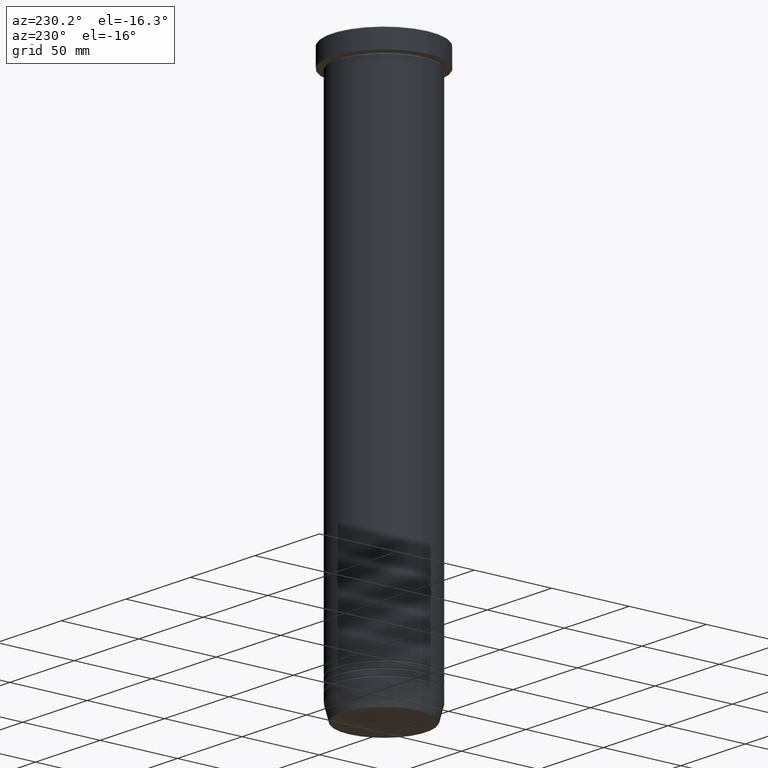
[diagram: clean part render]
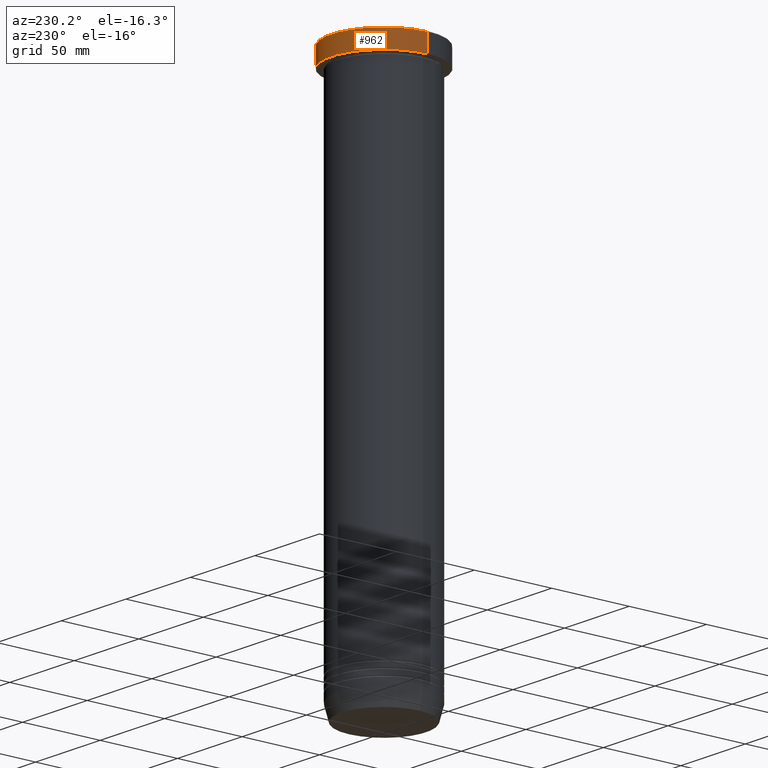
[diagram: same view with one face highlighted and labeled with its STEP entity id]
A machine part, auxiliary view. The second image highlights one B-rep face of the part: STEP entity #962.
In plain terms, the highlighted cylindrical surface (partial cylindrical patch) has radius 34 mm, axis along (-0, -0, 1).
Its self-contained STEP definition (entity closure, byte-faithful):
#3 = FACE_OUTER_BOUND ( 'NONE', #152, .T. ) ;
#53 = DIRECTION ( 'NONE',  ( -0.000000000000000000, -0.000000000000000000, 1.000000000000000000 ) ) ;
#58 = CARTESIAN_POINT ( 'NONE',  ( -34.00000000000000000, 4.163799117101000559E-15, 0.000000000000000000 ) ) ;
#69 = CARTESIAN_POINT ( 'NONE',  ( 34.00000000000000000, 0.000000000000000000, -11.99999999999999645 ) ) ;
#152 = EDGE_LOOP ( 'NONE', ( #552, #539, #535, #354 ) ) ;
#158 = AXIS2_PLACEMENT_3D ( 'NONE', #278, #434, #665 ) ;
#165 = CYLINDRICAL_SURFACE ( 'NONE', #530, 34.00000000000000000 ) ;
#167 = CIRCLE ( 'NONE', #755, 34.00000000000000000 ) ;
#171 = DIRECTION ( 'NONE',  ( -0.000000000000000000, -0.000000000000000000, 1.000000000000000000 ) ) ;
#208 = VERTEX_POINT ( 'NONE', #787 ) ;
#213 = VERTEX_POINT ( 'NONE', #791 ) ;
#249 = CARTESIAN_POINT ( 'NONE',  ( -34.00000000000000000, 4.163799117101000559E-15, -0.4999999999999935052 ) ) ;
#278 = CARTESIAN_POINT ( 'NONE',  ( 0.000000000000000000, 0.000000000000000000, -0.4999999999999935052 ) ) ;
#354 = ORIENTED_EDGE ( 'NONE', *, *, #424, .F. ) ;
#398 = DIRECTION ( 'NONE',  ( -0.000000000000000000, -0.000000000000000000, 1.000000000000000000 ) ) ;
#403 = CARTESIAN_POINT ( 'NONE',  ( 0.000000000000000000, 0.000000000000000000, -11.99999999999999645 ) ) ;
#424 = EDGE_CURVE ( 'NONE', #957, #208, #685, .T. ) ;
#431 = EDGE_CURVE ( 'NONE', #213, #988, #796, .T. ) ;
#434 = DIRECTION ( 'NONE',  ( 0.000000000000000000, 0.000000000000000000, -1.000000000000000000 ) ) ;
#519 = CARTESIAN_POINT ( 'NONE',  ( 34.00000000000000000, 0.000000000000000000, 0.000000000000000000 ) ) ;
#530 = AXIS2_PLACEMENT_3D ( 'NONE', #556, #398, #706 ) ;
#535 = ORIENTED_EDGE ( 'NONE', *, *, #1045, .T. ) ;
#539 = ORIENTED_EDGE ( 'NONE', *, *, #431, .T. ) ;
#552 = ORIENTED_EDGE ( 'NONE', *, *, #557, .T. ) ;
#556 = CARTESIAN_POINT ( 'NONE',  ( 0.000000000000000000, 0.000000000000000000, 0.000000000000000000 ) ) ;
#557 = EDGE_CURVE ( 'NONE', #957, #213, #167, .T. ) ;
#665 = DIRECTION ( 'NONE',  ( 1.000000000000000000, 0.000000000000000000, 0.000000000000000000 ) ) ;
#685 = LINE ( 'NONE', #519, #718 ) ;
#706 = DIRECTION ( 'NONE',  ( 1.000000000000000000, 0.000000000000000000, 0.000000000000000000 ) ) ;
#718 = VECTOR ( 'NONE', #53, 1000.000000000000000 ) ;
#721 = DIRECTION ( 'NONE',  ( 1.000000000000000000, 0.000000000000000000, 0.000000000000000000 ) ) ;
#755 = AXIS2_PLACEMENT_3D ( 'NONE', #403, #171, #721 ) ;
#787 = CARTESIAN_POINT ( 'NONE',  ( 34.00000000000000000, 0.000000000000000000, -0.4999999999999935052 ) ) ;
#791 = CARTESIAN_POINT ( 'NONE',  ( -34.00000000000000000, 4.163799117101000559E-15, -11.99999999999999645 ) ) ;
#796 = LINE ( 'NONE', #58, #846 ) ;
#846 = VECTOR ( 'NONE', #853, 1000.000000000000000 ) ;
#853 = DIRECTION ( 'NONE',  ( -0.000000000000000000, -0.000000000000000000, 1.000000000000000000 ) ) ;
#942 = CIRCLE ( 'NONE', #158, 34.00000000000000000 ) ;
#957 = VERTEX_POINT ( 'NONE', #69 ) ;
#962 = ADVANCED_FACE ( 'NONE', ( #3 ), #165, .T. ) ;
#988 = VERTEX_POINT ( 'NONE', #249 ) ;
#1045 = EDGE_CURVE ( 'NONE', #988, #208, #942, .T. ) ;